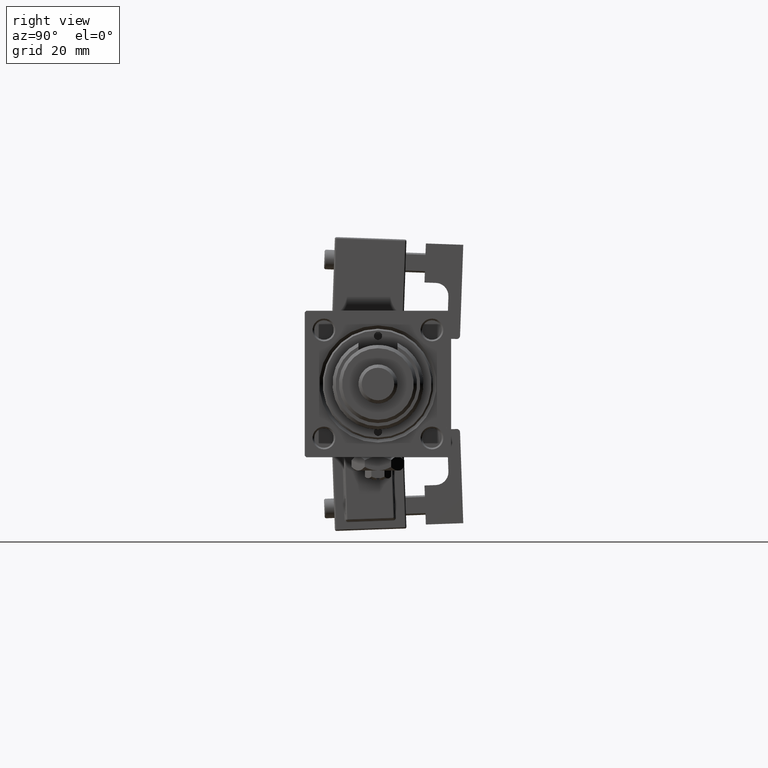
[diagram: clean part render]
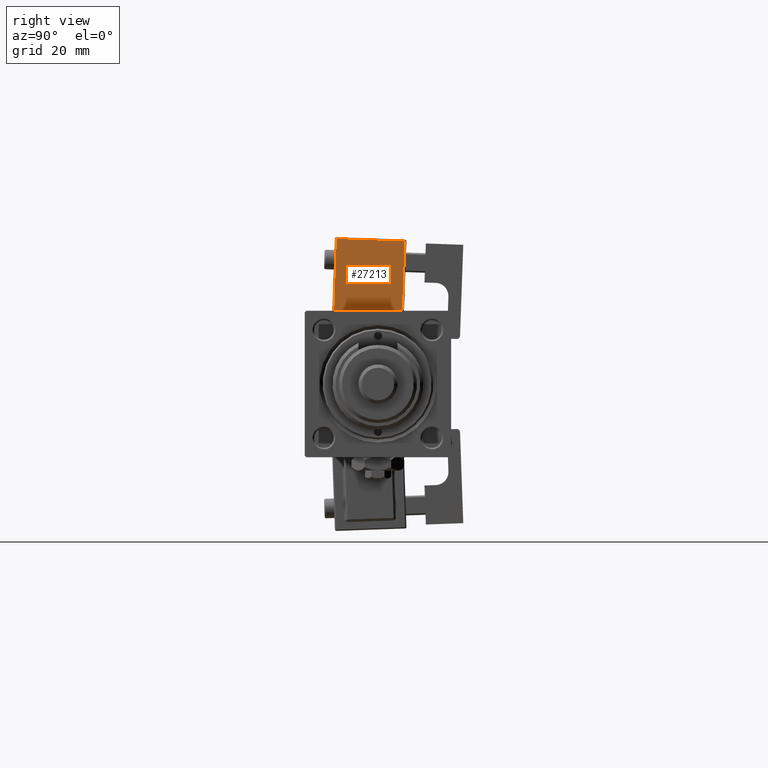
[diagram: same view with one face highlighted and labeled with its STEP entity id]
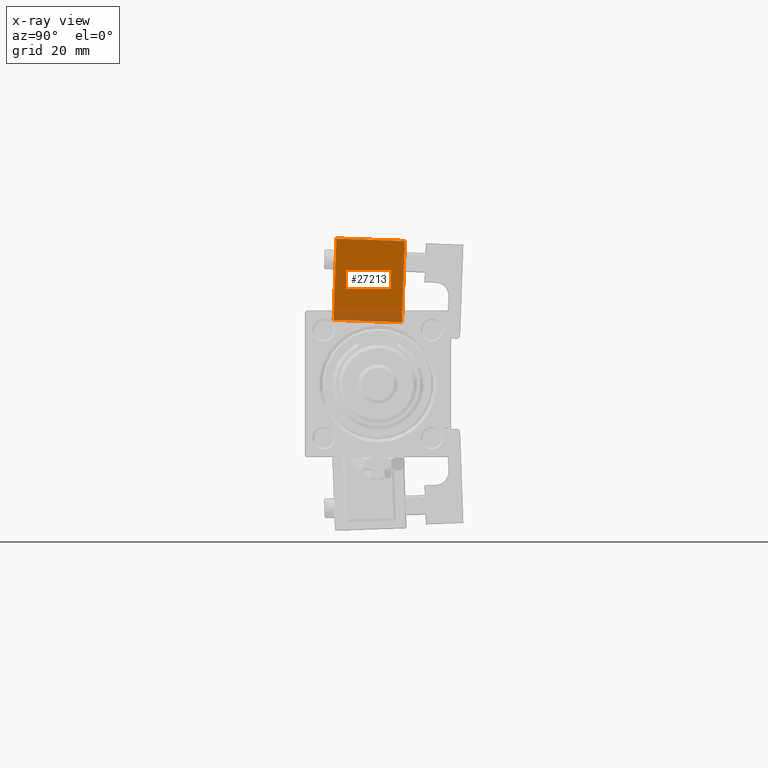
[diagram: x-ray of the same camera — body ghosted, the highlighted face saturated]
A machine part, right view. The second image highlights one B-rep face of the part: STEP entity #27213.
The next image is the same camera in x-ray: the body ghosted, the highlighted face saturated — about 13% of this face is hidden behind the body in this view.
In plain terms, the highlighted planar face has unit normal (-1, 0, 0).
Its self-contained STEP definition (entity closure, byte-faithful):
#828 = ORIENTED_EDGE ( 'NONE', *, *, #22347, .T. ) ;
#2195 = ORIENTED_EDGE ( 'NONE', *, *, #15577, .T. ) ;
#2952 = LINE ( 'NONE', #51149, #42298 ) ;
#3856 = CARTESIAN_POINT ( 'NONE',  ( -8.750000000000003553, -33.75000000000000000, -0.5000000000000004441 ) ) ;
#4848 = CARTESIAN_POINT ( 'NONE',  ( -8.750000000000003553, -12.25000000000000000, -0.5000000000000001110 ) ) ;
#7234 = AXIS2_PLACEMENT_3D ( 'NONE', #51459, #16522, #21287 ) ;
#7932 = ORIENTED_EDGE ( 'NONE', *, *, #14729, .T. ) ;
#8499 = CARTESIAN_POINT ( 'NONE',  ( -8.750000000000000000, -33.25000000000000000, 24.50000000000000000 ) ) ;
#9550 = VECTOR ( 'NONE', #26118, 1000.000000000000000 ) ;
#9720 = VERTEX_POINT ( 'NONE', #10203 ) ;
#10203 = CARTESIAN_POINT ( 'NONE',  ( -8.750000000000000000, -12.25000000000000000, 24.50000000000000000 ) ) ;
#14729 = EDGE_CURVE ( 'NONE', #50850, #45398, #38017, .T. ) ;
#15577 = EDGE_CURVE ( 'NONE', #9720, #50850, #54652, .T. ) ;
#15751 = DIRECTION ( 'NONE',  ( -1.334402673828313093E-16, 0.000000000000000000, -1.000000000000000000 ) ) ;
#16522 = DIRECTION ( 'NONE',  ( 1.000000000000000000, 0.000000000000000000, -1.334402673828313093E-16 ) ) ;
#17327 = FACE_OUTER_BOUND ( 'NONE', #17813, .T. ) ;
#17813 = EDGE_LOOP ( 'NONE', ( #828, #36335, #2195, #7932 ) ) ;
#21287 = DIRECTION ( 'NONE',  ( -1.334402673828313093E-16, 0.000000000000000000, -1.000000000000000000 ) ) ;
#21543 = EDGE_CURVE ( 'NONE', #46849, #9720, #2952, .T. ) ;
#22347 = EDGE_CURVE ( 'NONE', #45398, #46849, #51674, .T. ) ;
#26118 = DIRECTION ( 'NONE',  ( -0.000000000000000000, -1.000000000000000000, -0.000000000000000000 ) ) ;
#27213 = ADVANCED_FACE ( 'NONE', ( #17327 ), #55411, .F. ) ;
#29734 = DIRECTION ( 'NONE',  ( 0.000000000000000000, 1.000000000000000000, 0.000000000000000000 ) ) ;
#33804 = CARTESIAN_POINT ( 'NONE',  ( -8.750000000000003553, -12.25000000000000000, -1.000000000000000888 ) ) ;
#36335 = ORIENTED_EDGE ( 'NONE', *, *, #21543, .T. ) ;
#38017 = LINE ( 'NONE', #3856, #9550 ) ;
#41153 = VECTOR ( 'NONE', #15751, 1000.000000000000000 ) ;
#42298 = VECTOR ( 'NONE', #29734, 1000.000000000000000 ) ;
#42678 = CARTESIAN_POINT ( 'NONE',  ( -8.750000000000000000, -33.25000000000000000, 25.00000000000000000 ) ) ;
#45398 = VERTEX_POINT ( 'NONE', #49492 ) ;
#46849 = VERTEX_POINT ( 'NONE', #8499 ) ;
#49492 = CARTESIAN_POINT ( 'NONE',  ( -8.750000000000003553, -33.25000000000000000, -0.5000000000000001110 ) ) ;
#50850 = VERTEX_POINT ( 'NONE', #4848 ) ;
#51149 = CARTESIAN_POINT ( 'NONE',  ( -8.750000000000000000, -33.75000000000000000, 24.50000000000000000 ) ) ;
#51251 = VECTOR ( 'NONE', #51403, 1000.000000000000000 ) ;
#51403 = DIRECTION ( 'NONE',  ( 1.334402673828313093E-16, -0.000000000000000000, 1.000000000000000000 ) ) ;
#51459 = CARTESIAN_POINT ( 'NONE',  ( -8.750000000000000000, -33.75000000000000000, 25.00000000000000000 ) ) ;
#51674 = LINE ( 'NONE', #42678, #51251 ) ;
#54652 = LINE ( 'NONE', #33804, #41153 ) ;
#55411 = PLANE ( 'NONE',  #7234 ) ;